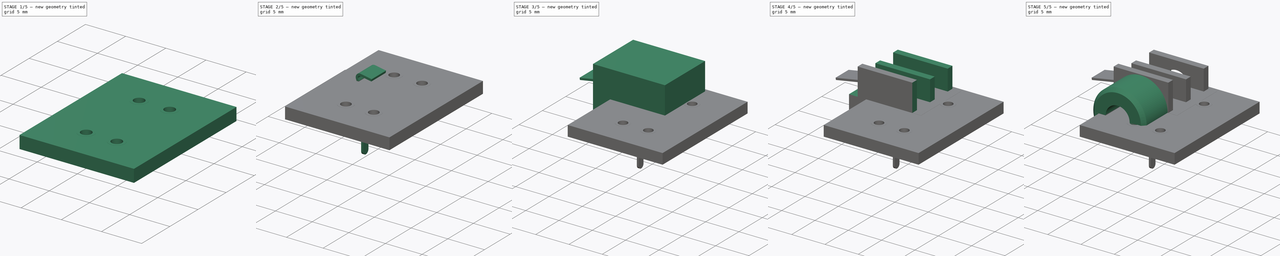
[diagram: build sequence overview — one tinted view per stage of 5, left to right]
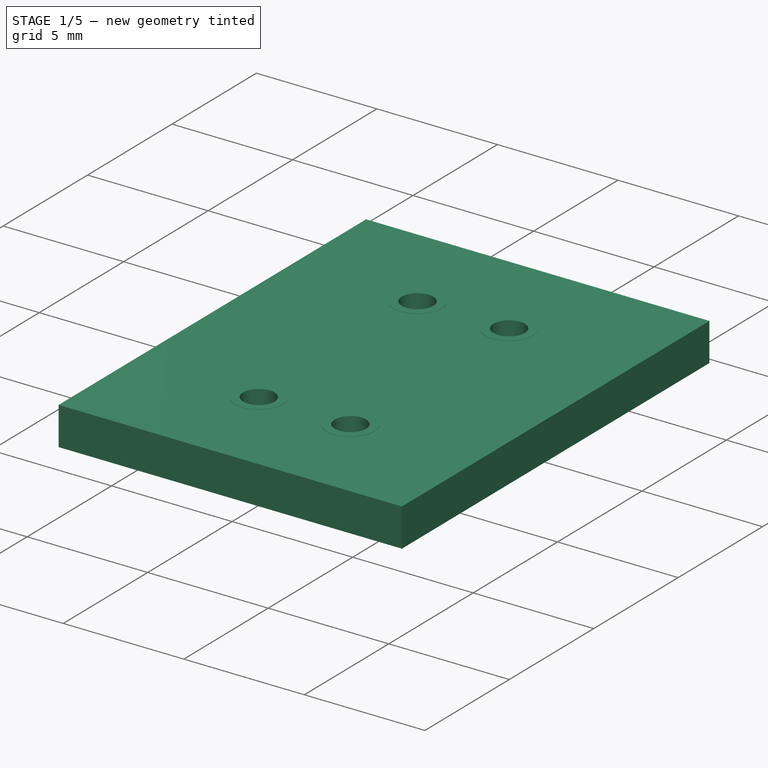
[diagram: stage 1 of 5 — iso view after this stage's code; geometry added in this stage tinted green]
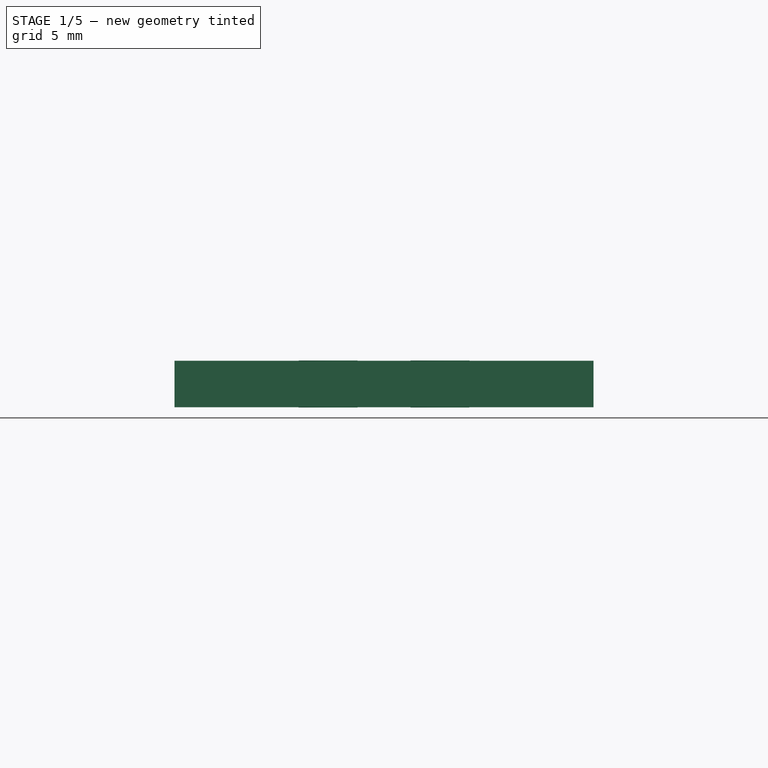
[diagram: stage 1 of 5 — front view after this stage's code; geometry added in this stage tinted green]
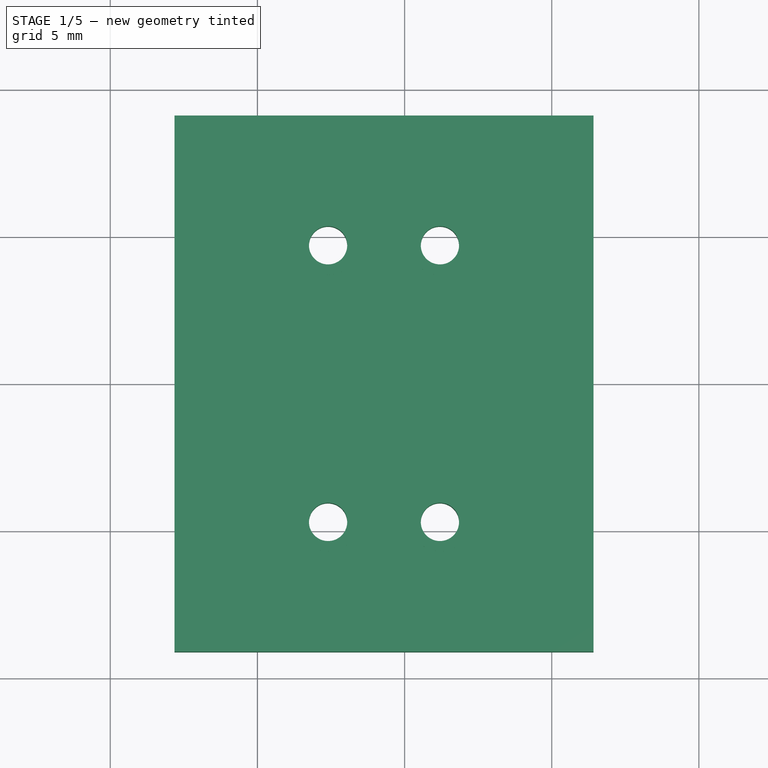
[diagram: stage 1 of 5 — top view after this stage's code; geometry added in this stage tinted green]
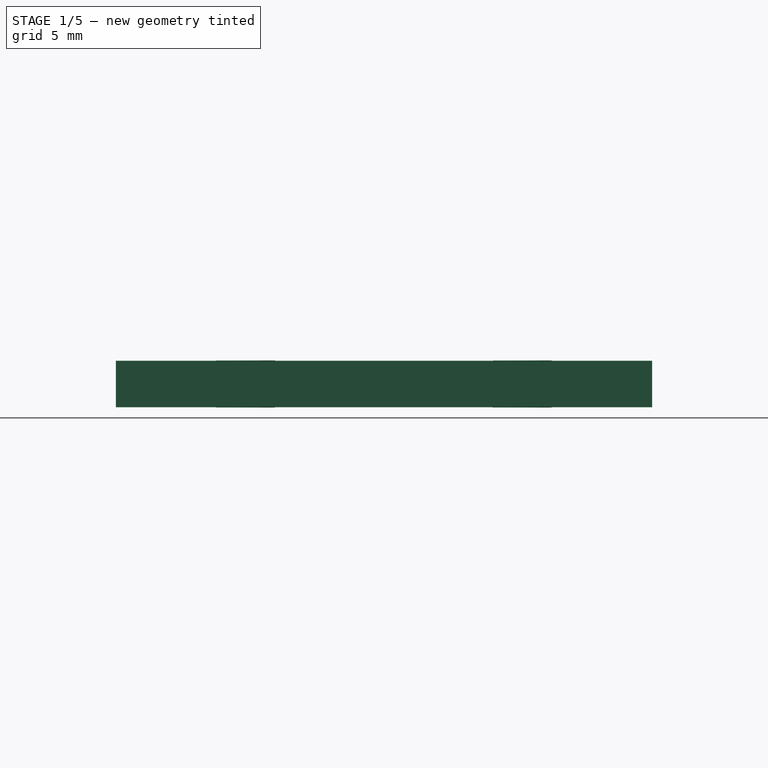
[diagram: stage 1 of 5 — right view after this stage's code; geometry added in this stage tinted green]
FCSTD DOCUMENT  (FreeCAD 0.17R13522 (Git))
Label: CLIFF-CL1384_ksu
License: All rights reserved
LicenseURL: http://fr.wikipedia.org/wiki/<copyright redacted>
objects: Sketcher::SketchObject×10, PartDesign::Pocket×6, Part::FeaturePython×5, PartDesign::Pad×4, PartDesign::FeaturePython×4, PartDesign::Body×3, Part::Feature×3, PartDesign::LinearPattern×2, PartDesign::Chamfer×1, App::DocumentObjectGroup×1
note: 48 computed .brp shape members not serialized (recipe doc carries the construction recipe); baked Part::Feature solids carry a one-line shape summary decoded from their .brp

FEATURE [PartDesign::Body] Body001002
  Group = -> [Sketch009,Pad003,Bend002,Bend003]
  Origin = -> Origin002
  Placement = pos=(-4.7,0,0) rot=(0,0,1;0rad)
  Tip = -> Bend003
FEATURE [Part::Feature] Body001002001  label="Body001003"
  Placement = pos=(-4.7,3.8,0) rot=(0,0,1;0rad)
  shape: bbox 2.181 x 2.8 x 10.53 mm, 26 faces (baked)
FEATURE [Part::FeaturePython] Filk_lines  label="FrontSilk"  # a2plus imported part (geometry in sourceFile) (typed FeaturePython)
  fixedPosition = true
FEATURE [Part::FeaturePython] TopPads  # a2plus imported part (geometry in sourceFile) (typed FeaturePython)
  fixedPosition = true
FEATURE [Part::FeaturePython] BotPads  # a2plus imported part (geometry in sourceFile) (typed FeaturePython)
  fixedPosition = true
FEATURE [Part::FeaturePython] THPs  label="PTHs"  # a2plus imported part (geometry in sourceFile) (typed FeaturePython)
  fixedPosition = true
FEATURE [Part::FeaturePython] newPCB  label="Pcb"  # a2plus imported part (geometry in sourceFile) (typed FeaturePython)
  fixedPosition = true
FEATURE [App::DocumentObjectGroup] JACK_3_5_MONO_FCR1281_fp
  Group = -> [Filk_lines,TopPads,BotPads,THPs,newPCB]
FEATURE [Part::Feature] Shape001  label="CLIFF-CL1384"
  shape: bbox 13.6 x 10.8 x 13.6 mm, 172 faces (baked)
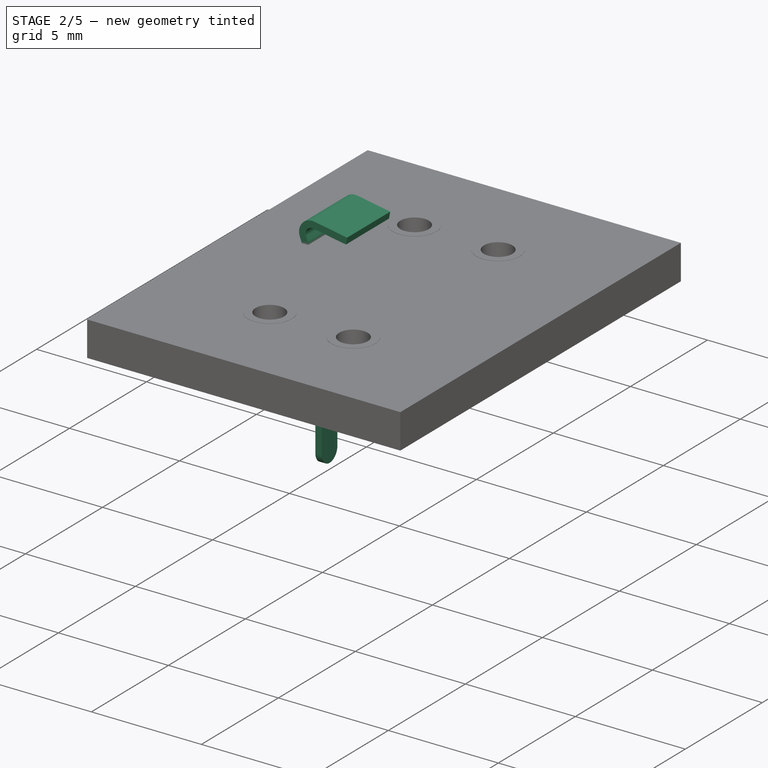
[diagram: stage 2 of 5 — iso view after this stage's code; geometry added in this stage tinted green]
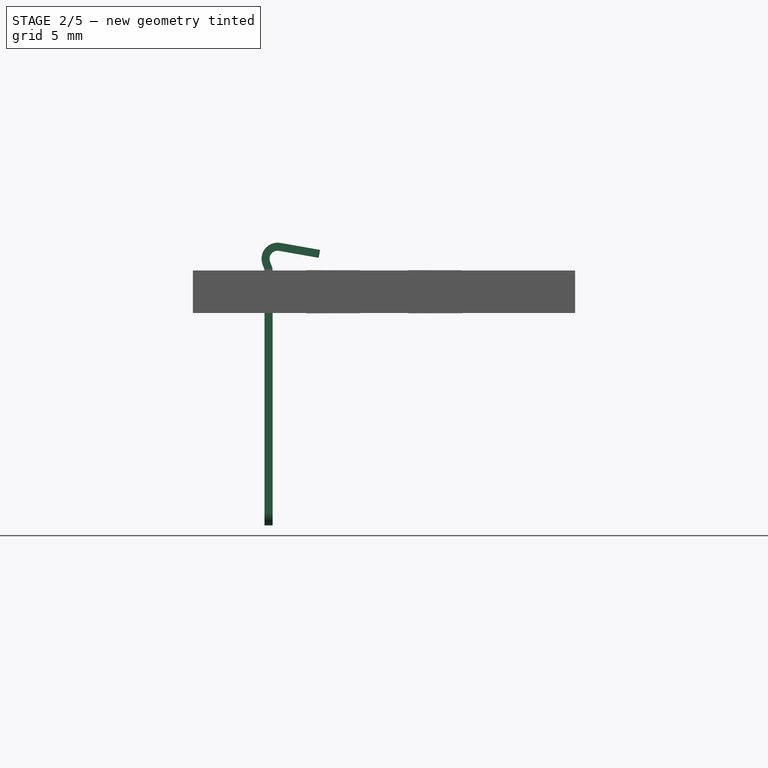
[diagram: stage 2 of 5 — front view after this stage's code; geometry added in this stage tinted green]
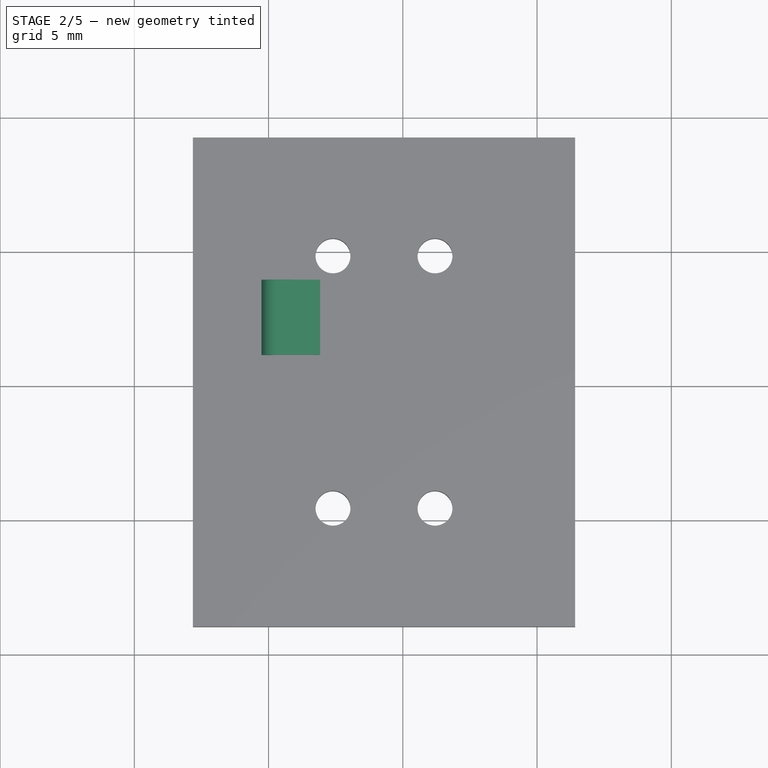
[diagram: stage 2 of 5 — top view after this stage's code; geometry added in this stage tinted green]
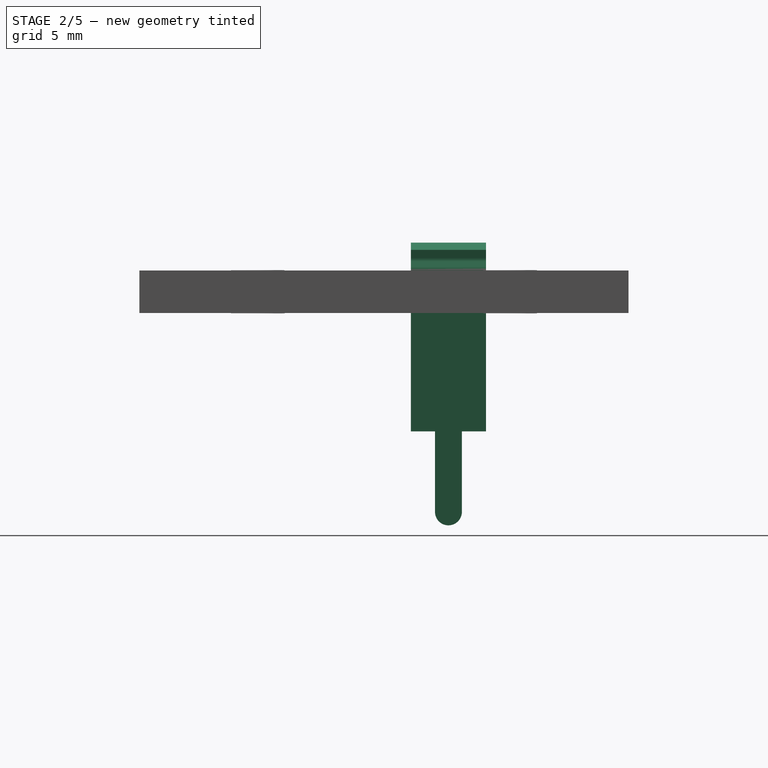
[diagram: stage 2 of 5 — right view after this stage's code; geometry added in this stage tinted green]
FEATURE [PartDesign::Body] Body
  Group = -> [Sketch,Pad,Sketch001,Pocket,LinearPattern,Sketch002,Pocket001,Sketch003,Pocket002,LinearPattern001,Sketch004,Pocket003,Sketch005,Pocket004,Sketch006,Pad001,Sketch007,Pocket005,Chamfer]
  Origin = -> Origin
  Tip = -> Chamfer
FEATURE [Sketcher::SketchObject] Sketch008
  MapMode = 5
  Placement = pos=(0,0,0) rot=(0.57735,0.57735,0.57735;2.0944rad)
  Support = -> [YZ_Plane001]
  sketch-geometry (8):
    g0: LineSegment StartX=1 StartY=0 StartZ=0 EndX=3.8 EndY=0 EndZ=0
    g1: LineSegment StartX=3.8 StartY=0 StartZ=0 EndX=3.8 EndY=-6 EndZ=0
    g2: LineSegment StartX=3.8 StartY=-6 StartZ=0 EndX=2.9 EndY=-6 EndZ=0
    g3: LineSegment StartX=2.9 StartY=-6 StartZ=0 EndX=2.9 EndY=-9 EndZ=0
    g4: LineSegment StartX=1.9 StartY=-9 StartZ=0 EndX=1.9 EndY=-6 EndZ=0
    g5: LineSegment StartX=1.9 StartY=-6 StartZ=0 EndX=1 EndY=-6 EndZ=0
    g6: LineSegment StartX=1 StartY=-6 StartZ=0 EndX=1 EndY=0 EndZ=0
    g7: ArcOfCircle CenterX=2.4 CenterY=-9 CenterZ=0 NormalX=0 NormalY=0 NormalZ=1 AngleXU=0 Radius=0.5 StartAngle=3.14159 EndAngle=6.28319
  constraints (23):
    c: Horizontal(g0)
    c: Coincident(g0,g1)
    c: Vertical(g1)
    c: Coincident(g1,g2)
    c: Horizontal(g2)
    c: Coincident(g2,g3)
    c: Vertical(g3)
    c: Vertical(g4)
    c: Coincident(g4,g5)
    c: Horizontal(g5)
    c: Coincident(g5,g6)
    c: Coincident(g6,g0)
    c: Vertical(g6)
    c: Tangent(g7,g3) = 1.5708
    c: Tangent(g7,g4) = 1.5708
    c: DistanceY(g6,g6) = 6
    c: PointOnObject(g0,g-1)
    c: DistanceX(g0,g0) = 2.8
    c: DistanceX(g4,g2) = 1
    c: DistanceX(g-1,g7) = 2.4
    c: Equal(g5,g2)
    c: DistanceY(g3,g3) = 3
    c: Horizontal(g4,g2)
FEATURE [PartDesign::Pad] Pad002
  Length = 0.3
  Length2 = 100
  Midplane = true
  Placement = pos=(0,0,0) rot=(0.57735,0.57735,0.57735;2.0944rad)
  Profile = -> Sketch008
  Type = 0
FEATURE [PartDesign::Body] Body001
  Group = -> [Sketch008,Pad002,Bend,Bend001]
  Origin = -> Origin001
  Placement = pos=(4.7,0,0) rot=(0,0,1;0rad)
  Tip = -> Bend001
FEATURE [Part::Feature] Body001001  label="Body002"
  Placement = pos=(4.7,3.8,0) rot=(0,0,1;0rad)
  shape: bbox 8.677 x 2.8 x 11.95 mm, 26 faces (baked)
FEATURE [Sketcher::SketchObject] Sketch009
  MapMode = 5
  Placement = pos=(0,0,0) rot=(0.57735,0.57735,0.57735;2.0944rad)
  Support = -> [YZ_Plane002]
  sketch-geometry (8):
    g0: LineSegment StartX=1 StartY=0 StartZ=0 EndX=3.8 EndY=0 EndZ=0
    g1: LineSegment StartX=3.8 StartY=0 StartZ=0 EndX=3.8 EndY=-6 EndZ=0
    g2: LineSegment StartX=3.8 StartY=-6 StartZ=0 EndX=2.9 EndY=-6 EndZ=0
    g3: LineSegment StartX=2.9 StartY=-6 StartZ=0 EndX=2.9 EndY=-9 EndZ=0
    g4: LineSegment StartX=1.9 StartY=-9 StartZ=0 EndX=1.9 EndY=-6 EndZ=0
    g5: LineSegment StartX=1.9 StartY=-6 StartZ=0 EndX=1 EndY=-6 EndZ=0
    g6: LineSegment StartX=1 StartY=-6 StartZ=0 EndX=1 EndY=0 EndZ=0
    g7: ArcOfCircle CenterX=2.4 CenterY=-9 CenterZ=0 NormalX=0 NormalY=0 NormalZ=1 AngleXU=0 Radius=0.5 StartAngle=3.14159 EndAngle=6.28319
  constraints (23):
    c: Horizontal(g0)
    c: Coincident(g0,g1)
    c: Vertical(g1)
    c: Coincident(g1,g2)
    c: Horizontal(g2)
    c: Coincident(g2,g3)
    c: Vertical(g3)
    c: Vertical(g4)
    c: Coincident(g4,g5)
    c: Horizontal(g5)
    c: Coincident(g5,g6)
    c: Coincident(g6,g0)
    c: Vertical(g6)
    c: Tangent(g7,g3) = 1.5708
    c: Tangent(g7,g4) = 1.5708
    c: DistanceY(g6,g6) = 6
    c: PointOnObject(g0,g-1)
    c: DistanceX(g0,g0) = 2.8
    c: DistanceX(g4,g2) = 1
    c: DistanceX(g-1,g7) = 2.4
    c: Equal(g5,g2)
    c: DistanceY(g3,g3) = 3
    c: Horizontal(g4,g2)
FEATURE [PartDesign::Pad] Pad003
  Length = 0.3
  Length2 = 100
  Midplane = true
  Placement = pos=(0,0,0) rot=(0.57735,0.57735,0.57735;2.0944rad)
  Profile = -> Sketch009
  Type = 0
FEATURE [PartDesign::FeaturePython] Bend002  # WARN: FeaturePython — macro-defined, semantics opaque (R4)
  BaseFeature = -> Pad003
  angle = 20
  baseObject = -> Pad003 [Face4]
  extend1 = 0
  extend2 = 0
  gap1 = 0
  gap2 = 0
  invert = true
  kfactor = 0.45
  length = 0.2
  miterangle1 = 0
  miterangle2 = 0
  radius = 0.1
  reliefType = 0
  reliefd = 1
  reliefw = 0.5
  unfold = false
FEATURE [PartDesign::FeaturePython] Bend003  # WARN: FeaturePython — macro-defined, semantics opaque (R4)
  BaseFeature = -> Bend002
  angle = 120
  baseObject = -> Bend002 [Face1]
  extend1 = 0
  extend2 = 0
  gap1 = 0
  gap2 = 0
  invert = false
  kfactor = 0.45
  length = 1.5
  miterangle1 = 0
  miterangle2 = 0
  radius = 0.3
  reliefType = 0
  reliefd = 1
  reliefw = 0.5
  unfold = false
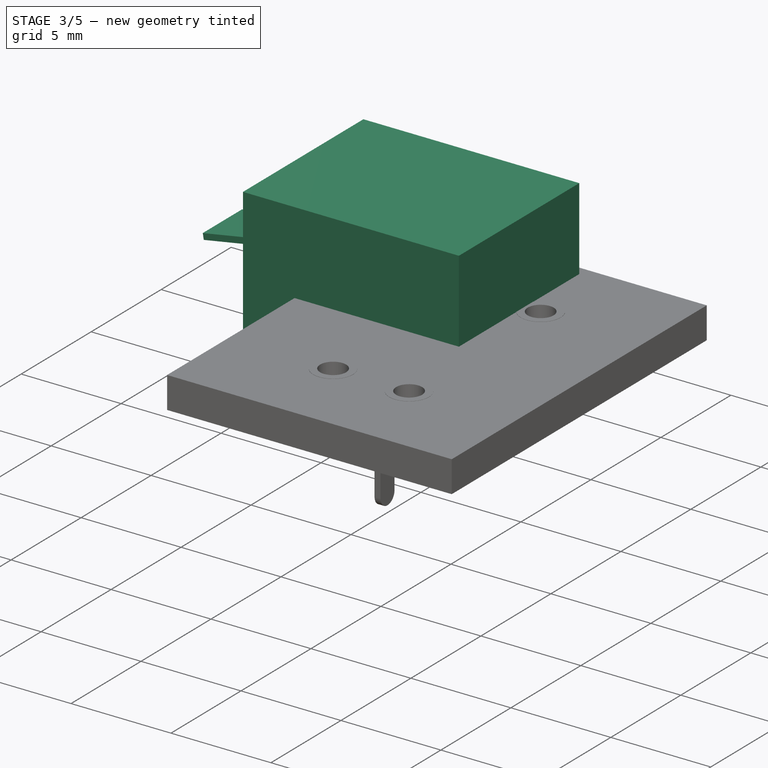
[diagram: stage 3 of 5 — iso view after this stage's code; geometry added in this stage tinted green]
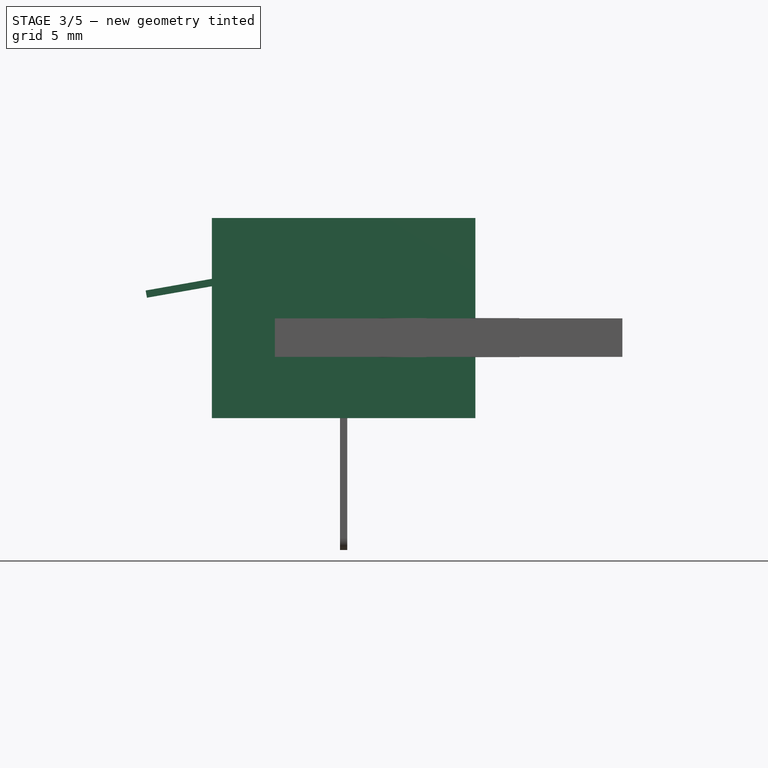
[diagram: stage 3 of 5 — front view after this stage's code; geometry added in this stage tinted green]
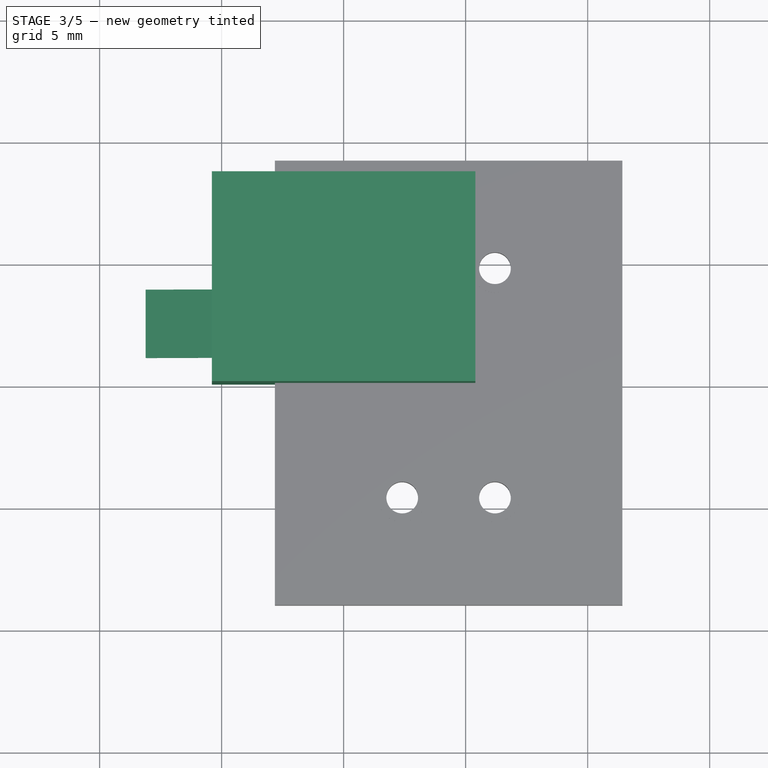
[diagram: stage 3 of 5 — top view after this stage's code; geometry added in this stage tinted green]
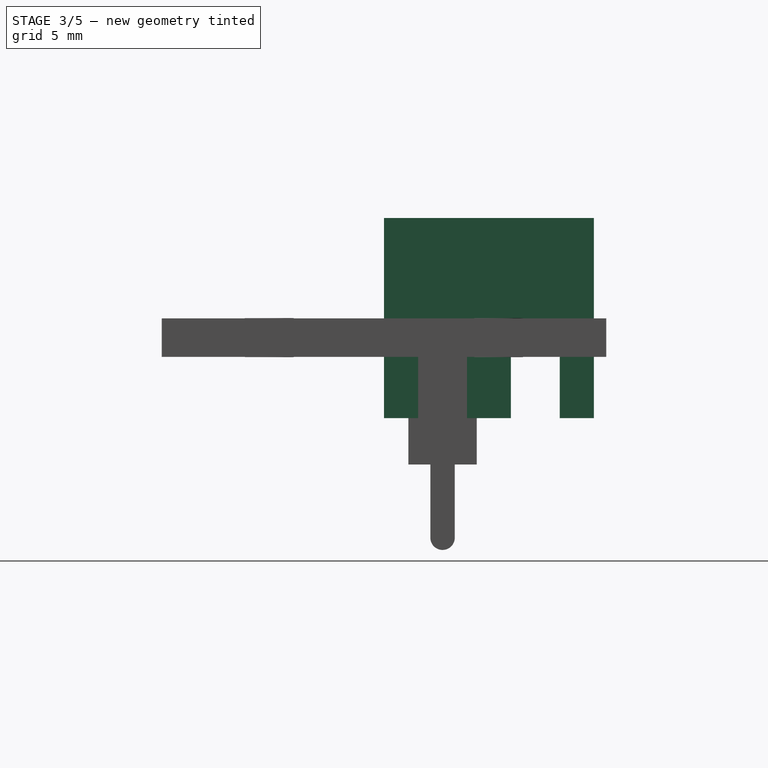
[diagram: stage 3 of 5 — right view after this stage's code; geometry added in this stage tinted green]
FEATURE [Sketcher::SketchObject] Sketch
  MapMode = 5
  Placement = pos=(0,0,0) rot=(1,0,0;1.5708rad)
  Support = -> [XZ_Plane]
  sketch-geometry (4):
    g0: LineSegment StartX=-5.4 StartY=4.1 StartZ=0 EndX=5.4 EndY=4.1 EndZ=0
    g1: LineSegment StartX=5.4 StartY=4.1 StartZ=0 EndX=5.4 EndY=-4.1 EndZ=0
    g2: LineSegment StartX=5.4 StartY=-4.1 StartZ=0 EndX=-5.4 EndY=-4.1 EndZ=0
    g3: LineSegment StartX=-5.4 StartY=-4.1 StartZ=0 EndX=-5.4 EndY=4.1 EndZ=0
  constraints (12):
    c: Coincident(g0,g1)
    c: Coincident(g1,g2)
    c: Coincident(g2,g3)
    c: Coincident(g3,g0)
    c: Horizontal(g0)
    c: Horizontal(g2)
    c: Vertical(g1)
    c: Vertical(g3)
    c: DistanceX(g0,g0) = 10.8
    c: DistanceY(g3,g3) = 8.2
    c: Symmetric(g0,g0,g-2)
    c: DistanceY(g1,g-1) = 4.1
FEATURE [PartDesign::Pad] Pad
  Length = 8.6
  Length2 = 100
  Placement = pos=(0,0,0) rot=(1,0,0;1.5708rad)
  Profile = -> Sketch
  Reversed = true
  Type = 0
FEATURE [Sketcher::SketchObject] Sketch001
  MapMode = 5
  Placement = pos=(5.4,0,0) rot=(0.707107,0,0.707107;3.14159rad)
  Support = -> [Pad]
  expr: Constraints[11] = 2.3999999999999999 - 1
  sketch-geometry (4):
    g0: LineSegment StartX=-4.1 StartY=-1.4 StartZ=0 EndX=-1.1 EndY=-1.4 EndZ=0
    g1: LineSegment StartX=-1.1 StartY=-1.4 StartZ=0 EndX=-1.1 EndY=-3.4 EndZ=0
    g2: LineSegment StartX=-1.1 StartY=-3.4 StartZ=0 EndX=-4.1 EndY=-3.4 EndZ=0
    g3: LineSegment StartX=-4.1 StartY=-3.4 StartZ=0 EndX=-4.1 EndY=-1.4 EndZ=0
  constraints (12):
    c: Coincident(g0,g1)
    c: Coincident(g1,g2)
    c: Coincident(g2,g3)
    c: Coincident(g3,g0)
    c: Horizontal(g0)
    c: Horizontal(g2)
    c: Vertical(g1)
    c: Vertical(g3)
    c: DistanceX(g2,g2) = 3
    c: DistanceX(g2,g-1) = 4.1
    c: DistanceY(g1,g1) = 2
    c: DistanceY(g0,g-1) = 1.4
FEATURE [PartDesign::Pocket] Pocket
  BaseFeature = -> Pad
  Length = 5
  Length2 = 100
  Placement = pos=(0,0,0) rot=(1,0,0;1.5708rad)
  Profile = -> Sketch001
  Type = 1
FEATURE [PartDesign::LinearPattern] LinearPattern
  BaseFeature = -> Pocket
  Direction = -> Y_Axis
  Length = 3.8
  Occurrences = 2
  Originals = -> [Pocket]
  Placement = pos=(0,0,0) rot=(1,0,0;1.5708rad)
FEATURE [PartDesign::FeaturePython] Bend  # WARN: FeaturePython — macro-defined, semantics opaque (R4)
  BaseFeature = -> Pad002
  angle = 20
  baseObject = -> Pad002 [Face4]
  extend1 = 0
  extend2 = 0
  gap1 = 0
  gap2 = 0
  invert = false
  kfactor = 0.45
  length = 1
  miterangle1 = 0
  miterangle2 = 0
  radius = 0.1
  reliefType = 0
  reliefd = 1
  reliefw = 0.5
  unfold = false
FEATURE [PartDesign::FeaturePython] Bend001  # WARN: FeaturePython — macro-defined, semantics opaque (R4)
  BaseFeature = -> Bend
  angle = 120
  baseObject = -> Bend [Face1]
  extend1 = 0
  extend2 = 0
  gap1 = 0
  gap2 = 0
  invert = true
  kfactor = 0.45
  length = 7.5
  miterangle1 = 0
  miterangle2 = 0
  radius = 0.8
  reliefType = 0
  reliefd = 1
  reliefw = 0.5
  unfold = false
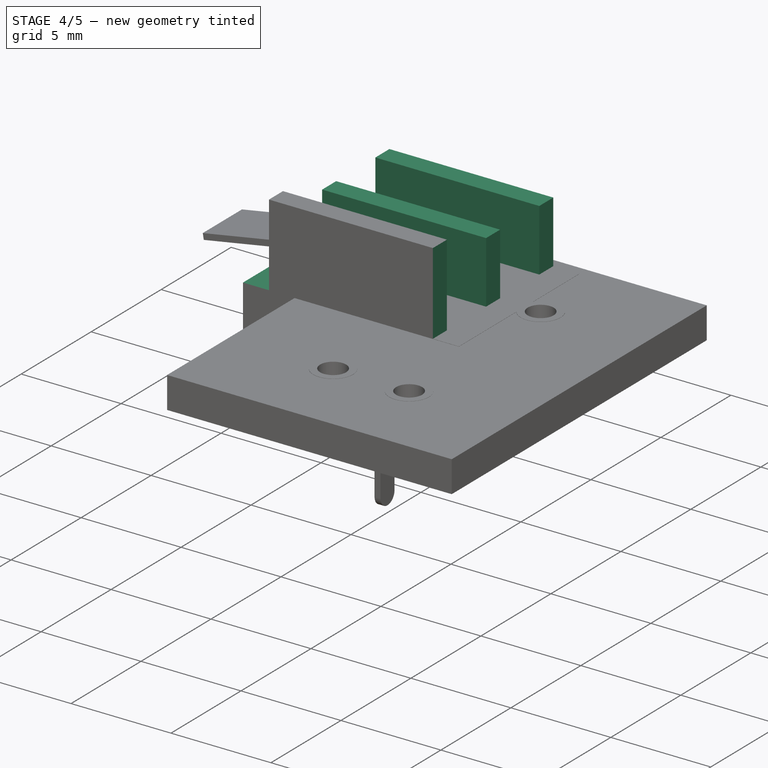
[diagram: stage 4 of 5 — iso view after this stage's code; geometry added in this stage tinted green]
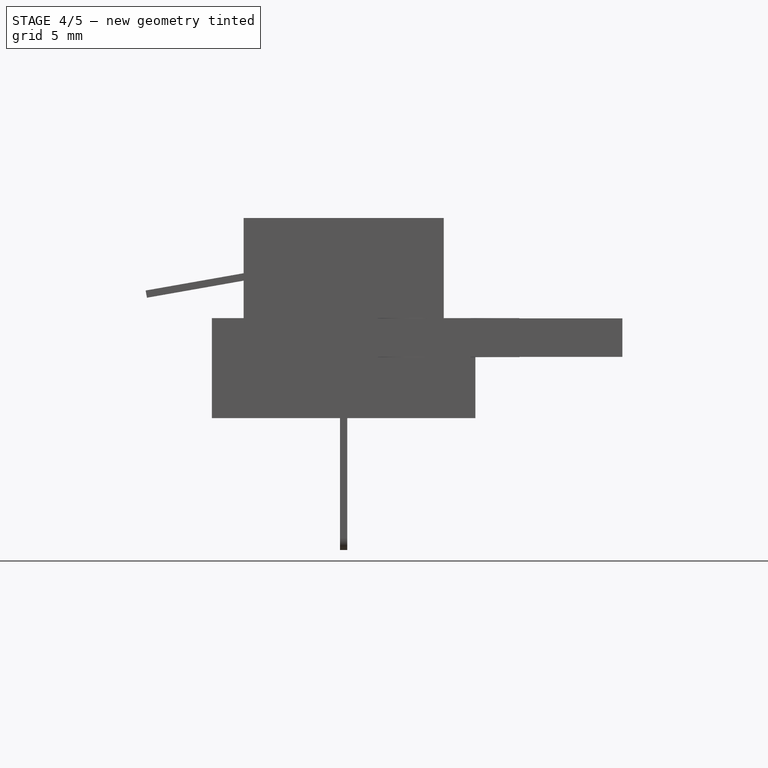
[diagram: stage 4 of 5 — front view after this stage's code; geometry added in this stage tinted green]
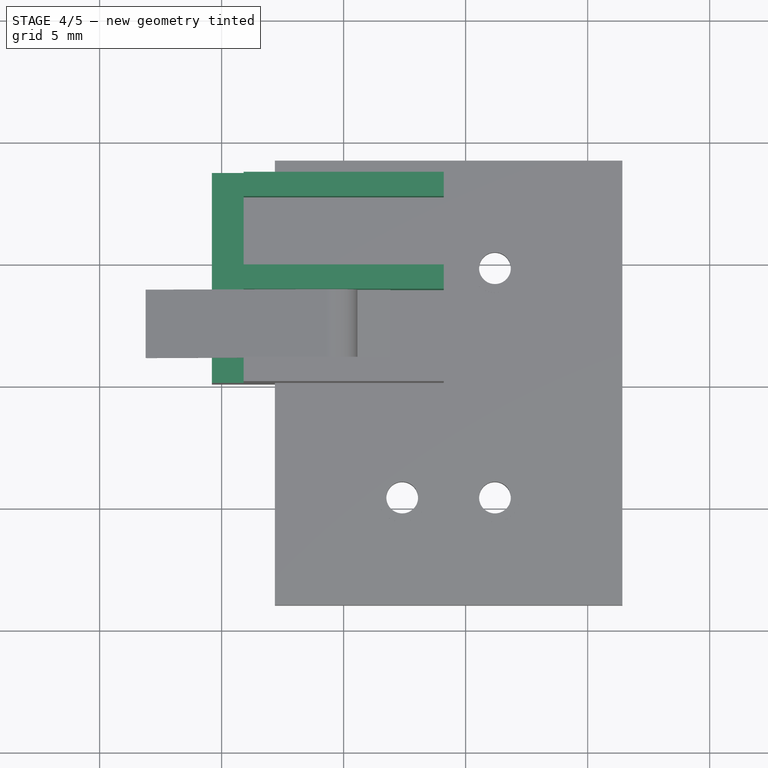
[diagram: stage 4 of 5 — top view after this stage's code; geometry added in this stage tinted green]
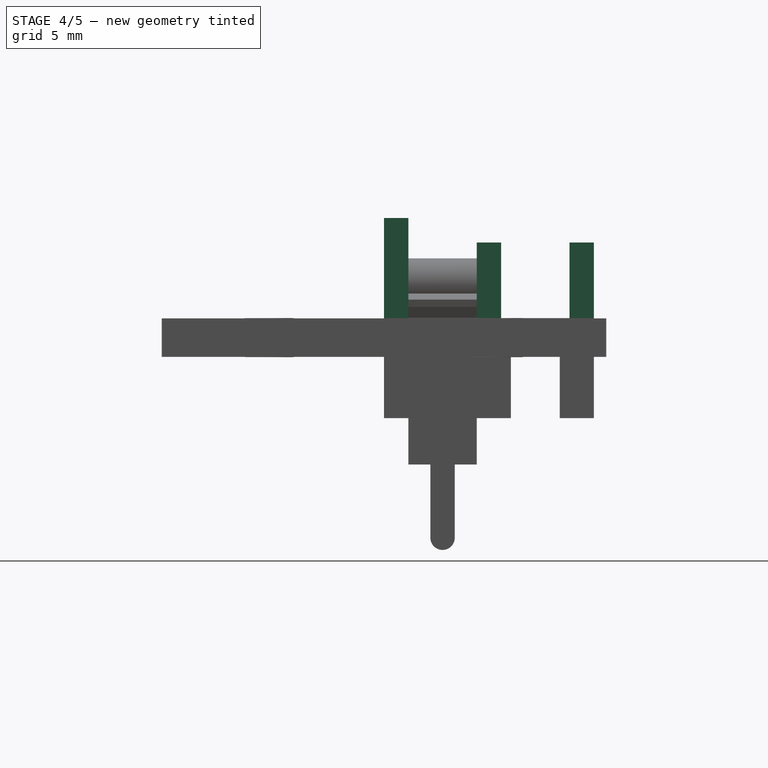
[diagram: stage 4 of 5 — right view after this stage's code; geometry added in this stage tinted green]
FEATURE [Sketcher::SketchObject] Sketch002
  MapMode = 5
  Placement = pos=(0,0,0) rot=(1,0,0;1.5708rad)
  Support = -> [LinearPattern]
  sketch-geometry (8):
    g0: LineSegment StartX=-5.4 StartY=0 StartZ=0 EndX=-4.1 EndY=0 EndZ=0
    g1: LineSegment StartX=-4.1 StartY=0 StartZ=0 EndX=-4.1 EndY=4.1 EndZ=0
    g2: LineSegment StartX=-4.1 StartY=4.1 StartZ=0 EndX=4.1 EndY=4.1 EndZ=0
    g3: LineSegment StartX=4.1 StartY=4.1 StartZ=0 EndX=4.1 EndY=0 EndZ=0
    g4: LineSegment StartX=4.1 StartY=0 StartZ=0 EndX=5.4 EndY=0 EndZ=0
    g5: LineSegment StartX=5.4 StartY=0 StartZ=0 EndX=5.4 EndY=5 EndZ=0
    g6: LineSegment StartX=5.4 StartY=5 StartZ=0 EndX=-5.4 EndY=5 EndZ=0
    g7: LineSegment StartX=-5.4 StartY=5 StartZ=0 EndX=-5.4 EndY=0 EndZ=0
  constraints (23):
    c: Horizontal(g0)
    c: Coincident(g0,g1)
    c: Vertical(g1)
    c: Coincident(g1,g2)
    c: Horizontal(g2)
    c: Coincident(g2,g3)
    c: Vertical(g3)
    c: Coincident(g3,g4)
    c: Horizontal(g4)
    c: Coincident(g4,g5)
    c: Vertical(g5)
    c: Coincident(g5,g6)
    c: Horizontal(g6)
    c: Coincident(g6,g7)
    c: Coincident(g7,g0)
    c: Vertical(g7)
    c: Symmetric(g0,g3,g-2)
    c: Symmetric(g0,g4,g-2)
    c: DistanceX(g2,g2) = 8.2
    c: DistanceY(g1,g1) = 4.1
    c: PointOnObject(g0,g-1)
    c: DistanceX(g6,g6) = 10.8
    c: DistanceY(g5,g5) = 5
FEATURE [PartDesign::Pocket] Pocket001
  BaseFeature = -> LinearPattern
  Length = 5
  Length2 = 100
  Placement = pos=(0,0,0) rot=(1,0,0;1.5708rad)
  Profile = -> Sketch002
  Type = 1
FEATURE [Sketcher::SketchObject] Sketch003
  MapMode = 5
  Placement = pos=(4.1,0,0) rot=(0.707107,0,0.707107;3.14159rad)
  Support = -> [Pocket001]
  expr: Constraints[11] = 2.3999999999999999 - 1.3999999999999999
  sketch-geometry (4):
    g0: LineSegment StartX=4.1 StartY=-1 StartZ=0 EndX=0 EndY=-1 EndZ=0
    g1: LineSegment StartX=0 StartY=-1 StartZ=0 EndX=0 EndY=-3.8 EndZ=0
    g2: LineSegment StartX=0 StartY=-3.8 StartZ=0 EndX=4.1 EndY=-3.8 EndZ=0
    g3: LineSegment StartX=4.1 StartY=-3.8 StartZ=0 EndX=4.1 EndY=-1 EndZ=0
  constraints (12):
    c: Coincident(g0,g1)
    c: Coincident(g1,g2)
    c: Coincident(g2,g3)
    c: Coincident(g3,g0)
    c: Horizontal(g0)
    c: Horizontal(g2)
    c: Vertical(g1)
    c: Vertical(g3)
    c: PointOnObject(g0,g-2)
    c: DistanceX(g0,g0) = 4.1
    c: DistanceY(g3,g3) = 2.8
    c: DistanceY(g0,g-1) = 1
FEATURE [PartDesign::Pocket] Pocket002
  BaseFeature = -> Pocket001
  Length = 5
  Length2 = 100
  Placement = pos=(0,0,0) rot=(1,0,0;1.5708rad)
  Profile = -> Sketch003
  Type = 1
FEATURE [PartDesign::LinearPattern] LinearPattern001
  BaseFeature = -> Pocket002
  Direction = -> Y_Axis
  Length = 3.8
  Occurrences = 2
  Originals = -> [Pocket002]
  Placement = pos=(0,0,0) rot=(1,0,0;1.5708rad)
FEATURE [Sketcher::SketchObject] Sketch004
  MapMode = 5
  Placement = pos=(4.1,0,0) rot=(0.707107,0,0.707107;3.14159rad)
  Support = -> [LinearPattern001]
  sketch-geometry (4):
    g0: LineSegment StartX=4.1 StartY=-1 StartZ=0 EndX=3.1 EndY=-1 EndZ=0
    g1: LineSegment StartX=3.1 StartY=-1 StartZ=0 EndX=3.1 EndY=-8.6 EndZ=0
    g2: LineSegment StartX=3.1 StartY=-8.6 StartZ=0 EndX=4.1 EndY=-8.6 EndZ=0
    g3: LineSegment StartX=4.1 StartY=-8.6 StartZ=0 EndX=4.1 EndY=-1 EndZ=0
  constraints (12):
    c: Coincident(g0,g1)
    c: Coincident(g1,g2)
    c: Coincident(g2,g3)
    c: Coincident(g3,g0)
    c: Horizontal(g0)
    c: Horizontal(g2)
    c: Vertical(g1)
    c: Vertical(g3)
    c: DistanceY(g0,g-1) = 1
    c: DistanceX(g0,g0) = 1
    c: DistanceX(g-1,g0) = 4.1
    c: DistanceY(g3,g3) = 7.6
FEATURE [PartDesign::Pocket] Pocket003
  BaseFeature = -> LinearPattern001
  Length = 5
  Length2 = 100
  Placement = pos=(0,0,0) rot=(1,0,0;1.5708rad)
  Profile = -> Sketch004
  Type = 1
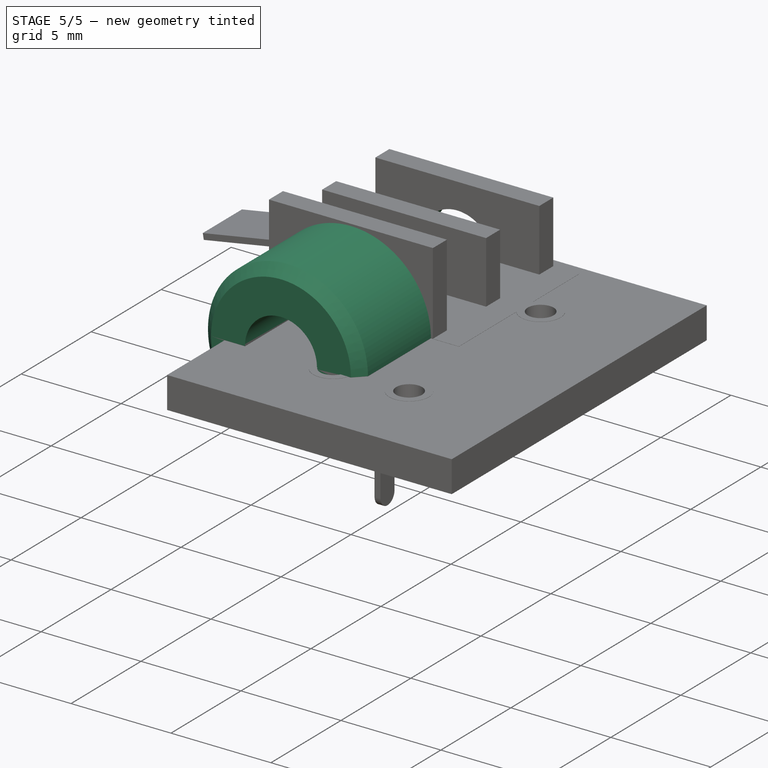
[diagram: stage 5 of 5 — iso view after this stage's code; geometry added in this stage tinted green]
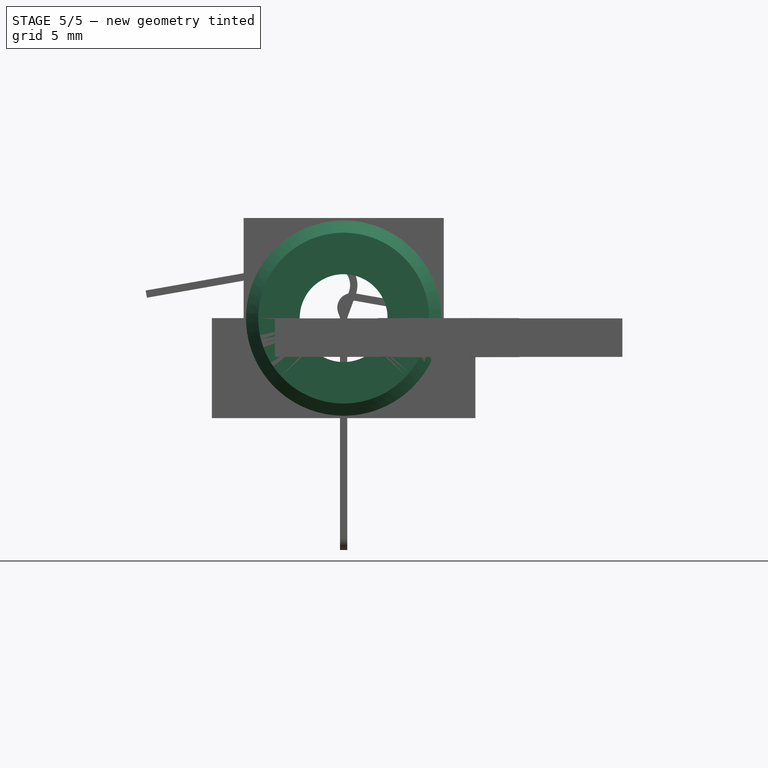
[diagram: stage 5 of 5 — front view after this stage's code; geometry added in this stage tinted green]
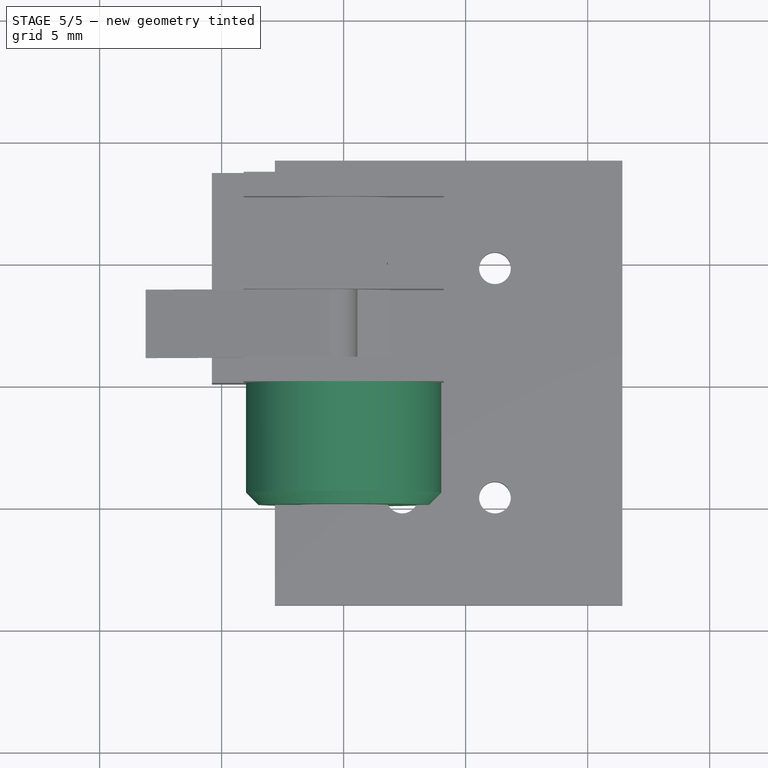
[diagram: stage 5 of 5 — top view after this stage's code; geometry added in this stage tinted green]
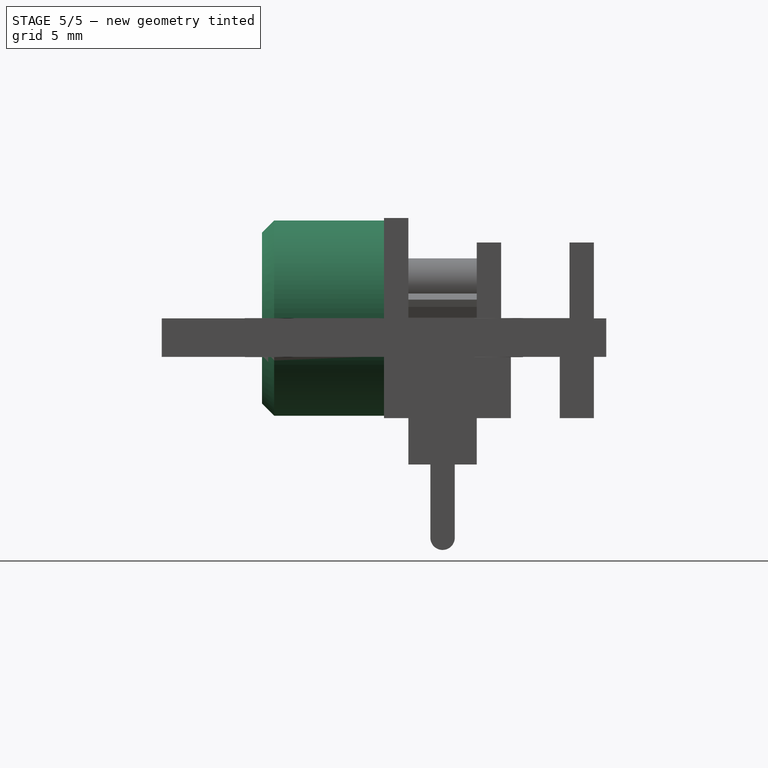
[diagram: stage 5 of 5 — right view after this stage's code; geometry added in this stage tinted green]
FEATURE [Sketcher::SketchObject] Sketch005
  MapMode = 5
  Placement = pos=(0,0,0) rot=(1,0,0;1.5708rad)
  Support = -> [Pocket003]
  expr: Constraints[1] = 3.6000000000000001 / 2
  sketch-geometry (1):
    g0: Circle CenterX=0 CenterY=0 CenterZ=0 NormalX=0 NormalY=0 NormalZ=1 AngleXU=0 Radius=1.8
  constraints (2):
    c: Coincident(g0,g-1)
    c: Radius(g0) = 1.8
FEATURE [PartDesign::Pocket] Pocket004
  BaseFeature = -> Pocket003
  Length = 5
  Length2 = 100
  Placement = pos=(0,0,0) rot=(1,0,0;1.5708rad)
  Profile = -> Sketch005
  Type = 1
FEATURE [Sketcher::SketchObject] Sketch006
  MapMode = 5
  Placement = pos=(0,0,0) rot=(1,0,0;1.5708rad)
  Support = -> [Pocket004]
  sketch-geometry (1):
    g0: Circle CenterX=0 CenterY=0 CenterZ=0 NormalX=0 NormalY=0 NormalZ=1 AngleXU=0 Radius=4
  constraints (2):
    c: Coincident(g0,g-1)
    c: Radius(g0) = 4
FEATURE [PartDesign::Pad] Pad001
  BaseFeature = -> Pocket004
  Length = 5
  Length2 = 100
  Placement = pos=(0,0,0) rot=(1,0,0;1.5708rad)
  Profile = -> Sketch006
  Type = 0
FEATURE [Sketcher::SketchObject] Sketch007
  MapMode = 5
  Placement = pos=(0,-5,0) rot=(1,0,0;1.5708rad)
  Support = -> [Pad001]
  sketch-geometry (1):
    g0: Circle CenterX=0 CenterY=0 CenterZ=0 NormalX=0 NormalY=0 NormalZ=1 AngleXU=0 Radius=1.8
  constraints (2):
    c: Coincident(g0,g-1)
    c: Radius(g0) = 1.8
FEATURE [PartDesign::Pocket] Pocket005
  BaseFeature = -> Pad001
  Length = 5
  Length2 = 100
  Placement = pos=(0,0,0) rot=(1,0,0;1.5708rad)
  Profile = -> Sketch007
  Type = 0
FEATURE [PartDesign::Chamfer] Chamfer
  Base = -> Pocket005 [Edge54]
  BaseFeature = -> Pocket005
  Placement = pos=(0,0,0) rot=(1,0,0;1.5708rad)
  Size = 0.5
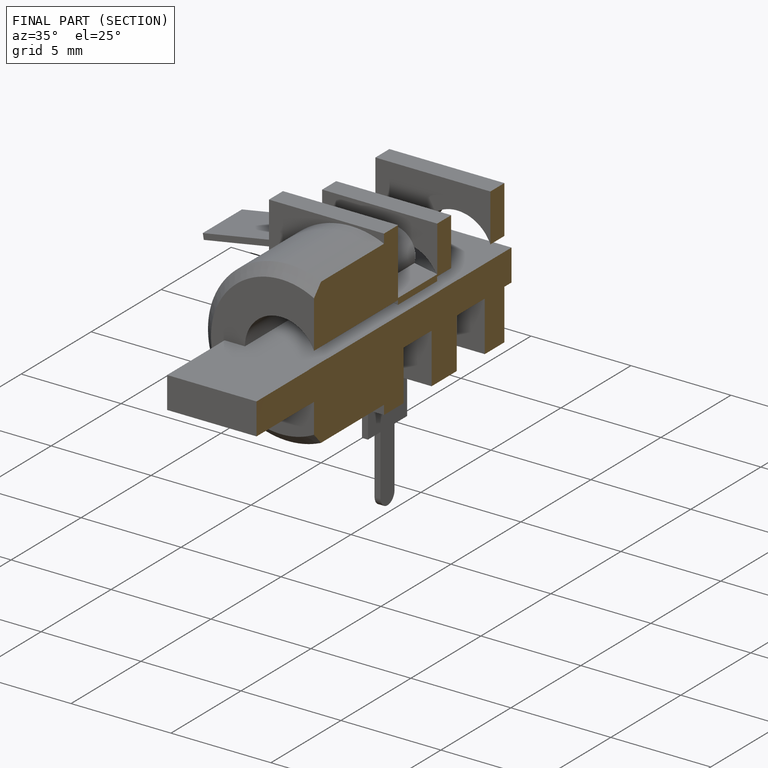
[diagram: finished part — half-section view (interior)]
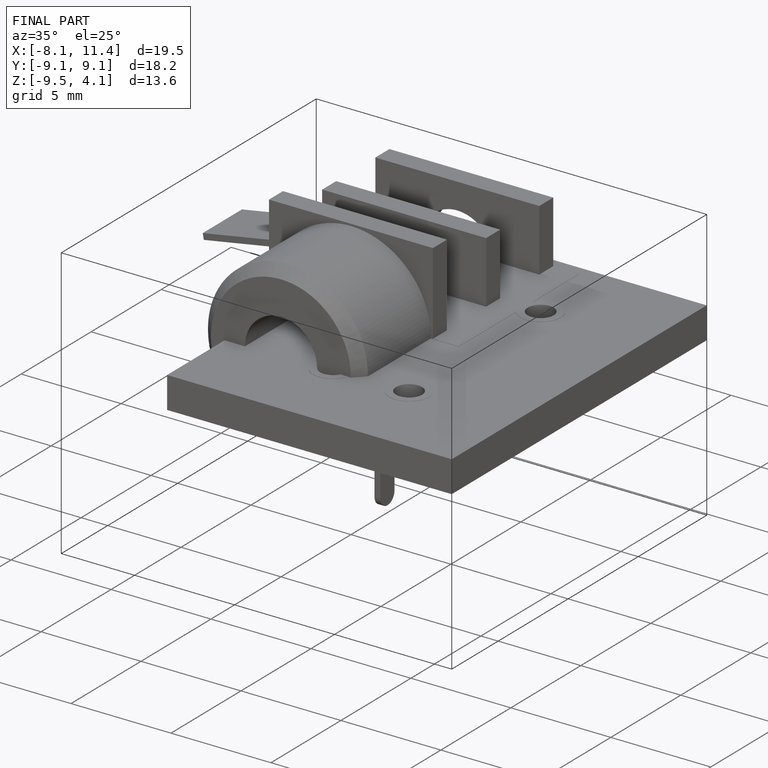
[diagram: finished part — iso view with bounding-box wireframe]
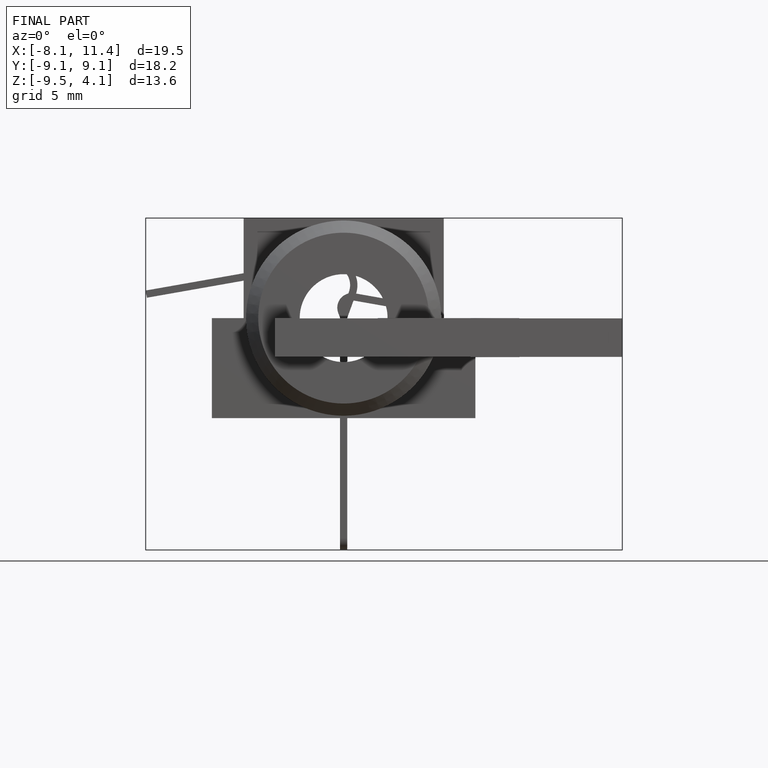
[diagram: finished part — front view with bounding-box wireframe]
